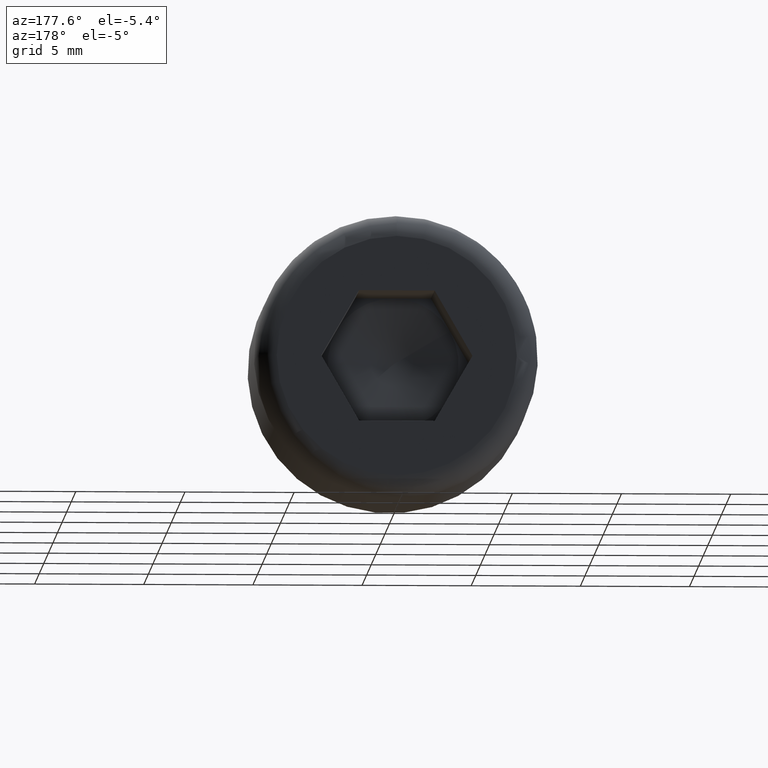
[diagram: clean part render]
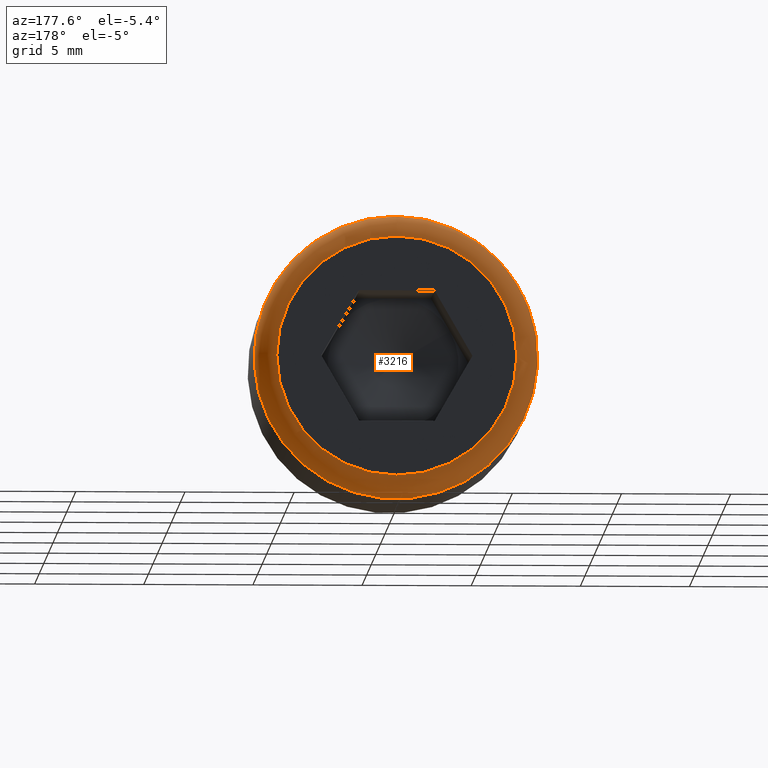
[diagram: same view with one face highlighted and labeled with its STEP entity id]
A machine part, auxiliary view. The second image highlights one B-rep face of the part: STEP entity #3216.
In plain terms, the highlighted toroidal blend (fillet) surface has major radius 5.5 mm and minor (blend) radius 1 mm.
Its self-contained STEP definition (entity closure, byte-faithful):
#215 = EDGE_LOOP ( 'NONE', ( #6427 ) ) ;
#456 = CIRCLE ( 'NONE', #12378, 6.500000000000000900 ) ;
#846 = CIRCLE ( 'NONE', #4561, 5.500000000000000900 ) ;
#1630 = FACE_OUTER_BOUND ( 'NONE', #13950, .T. ) ;
#1842 = DIRECTION ( 'NONE',  ( 0.0000000000000000000, 0.0000000000000000000, 1.000000000000000000 ) ) ;
#2507 = DIRECTION ( 'NONE',  ( 0.0000000000000000000, 0.0000000000000000000, 1.000000000000000000 ) ) ;
#2823 = VERTEX_POINT ( 'NONE', #11059 ) ;
#3092 = TOROIDAL_SURFACE ( 'NONE', #3708, 5.500000000000000900, 1.000000000000000000 ) ;
#3216 = ADVANCED_FACE ( 'NONE', ( #8722, #1630 ), #3092, .T. ) ;
#3708 = AXIS2_PLACEMENT_3D ( 'NONE', #13171, #11888, #14487 ) ;
#4409 = CARTESIAN_POINT ( 'NONE',  ( 0.0000000000000000000, 7.000000000000000000, 6.500000000000000900 ) ) ;
#4561 = AXIS2_PLACEMENT_3D ( 'NONE', #16977, #6592, #2507 ) ;
#6427 = ORIENTED_EDGE ( 'NONE', *, *, #11900, .F. ) ;
#6592 = DIRECTION ( 'NONE',  ( 0.0000000000000000000, 1.000000000000000000, 0.0000000000000000000 ) ) ;
#8722 = FACE_OUTER_BOUND ( 'NONE', #215, .T. ) ;
#9893 = VERTEX_POINT ( 'NONE', #4409 ) ;
#11059 = CARTESIAN_POINT ( 'NONE',  ( 0.0000000000000000000, 8.000000000000000000, 5.500000000000000900 ) ) ;
#11888 = DIRECTION ( 'NONE',  ( 0.0000000000000000000, 1.000000000000000000, 0.0000000000000000000 ) ) ;
#11900 = EDGE_CURVE ( 'NONE', #9893, #9893, #456, .T. ) ;
#12348 = CARTESIAN_POINT ( 'NONE',  ( 0.0000000000000000000, 7.000000000000000000, 0.0000000000000000000 ) ) ;
#12378 = AXIS2_PLACEMENT_3D ( 'NONE', #12348, #14993, #1842 ) ;
#13098 = EDGE_CURVE ( 'NONE', #2823, #2823, #846, .T. ) ;
#13171 = CARTESIAN_POINT ( 'NONE',  ( 0.0000000000000000000, 7.000000000000000000, 0.0000000000000000000 ) ) ;
#13950 = EDGE_LOOP ( 'NONE', ( #16724 ) ) ;
#14487 = DIRECTION ( 'NONE',  ( 0.0000000000000000000, 0.0000000000000000000, 1.000000000000000000 ) ) ;
#14993 = DIRECTION ( 'NONE',  ( -0.0000000000000000000, -1.000000000000000000, -0.0000000000000000000 ) ) ;
#16724 = ORIENTED_EDGE ( 'NONE', *, *, #13098, .F. ) ;
#16977 = CARTESIAN_POINT ( 'NONE',  ( 0.0000000000000000000, 8.000000000000000000, 0.0000000000000000000 ) ) ;